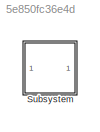
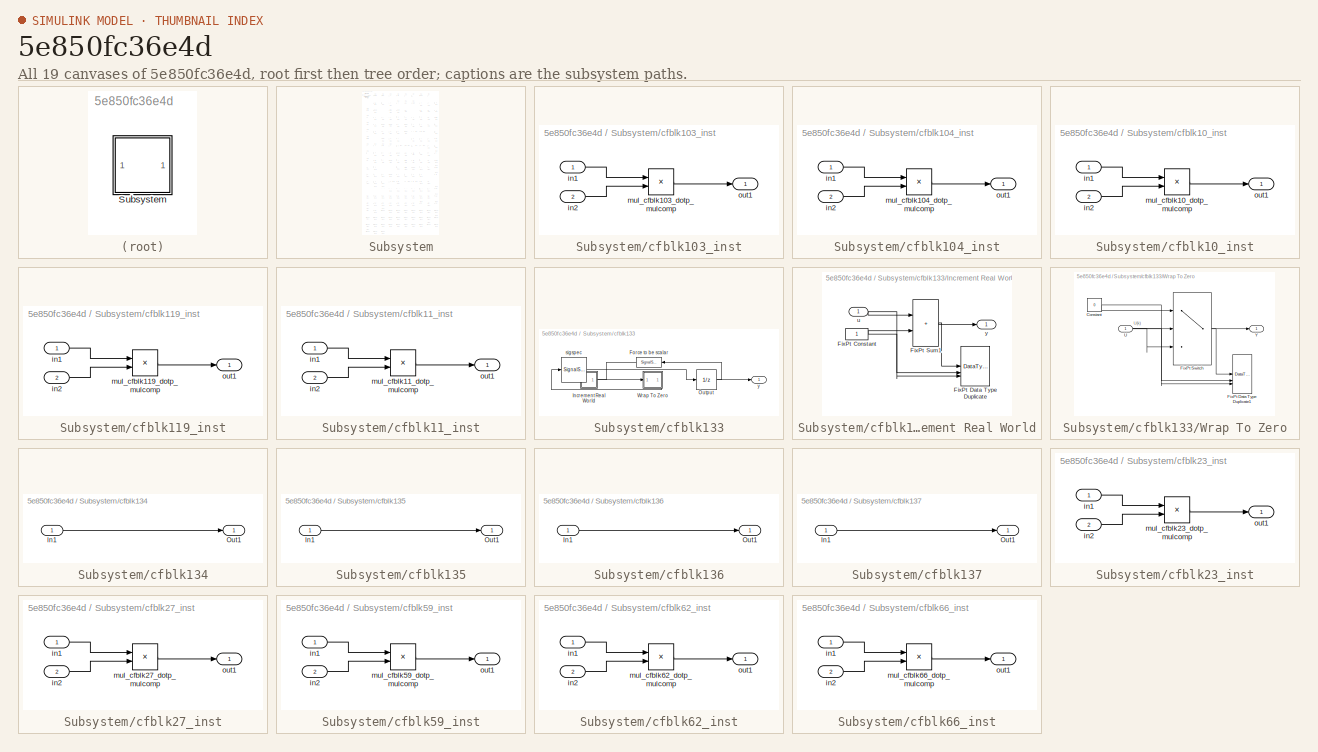
[diagram: thumbnail index - all 19 canvases of the model, root first then tree order]
MODEL slx_5e850fc36e4d
KIND model
CONFIG AbsTol = auto
CONFIG EnableMultiTasking = off
CONFIG FixedStep = auto
CONFIG MaxStep = auto
CONFIG MinStep = auto
CONFIG RelTol = 1e-3
CONFIG SampleTimeConstraint = Unconstrained
CONFIG SolverName = VariableStepAuto
CONFIG StartTime = 0.0
CONFIG StopTime = 10.0
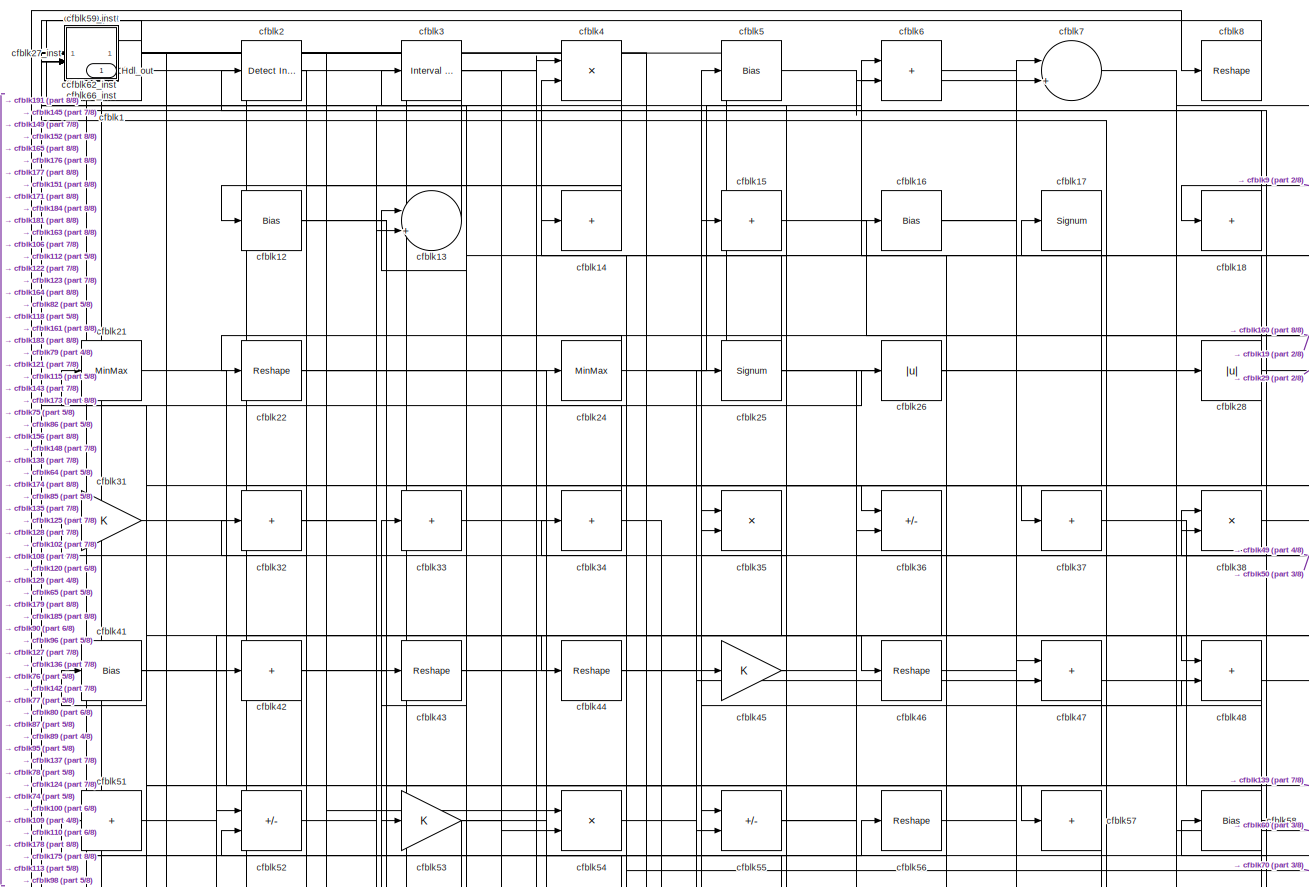
[diagram: Subsystem - part 1/8, full width, top band]
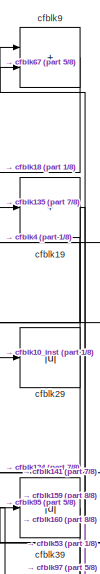
[diagram: Subsystem - part 2/8, top right region]
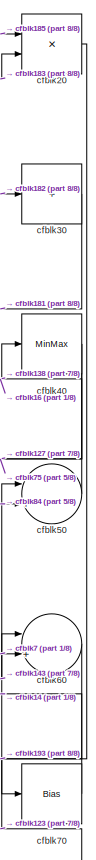
[diagram: Subsystem - part 3/8, top right region]
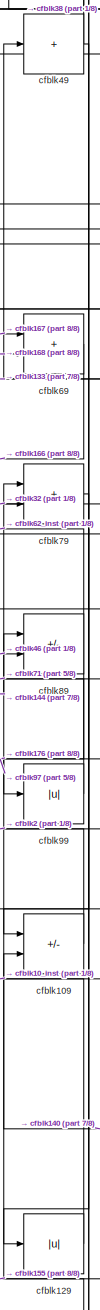
[diagram: Subsystem - part 4/8, middle right region]
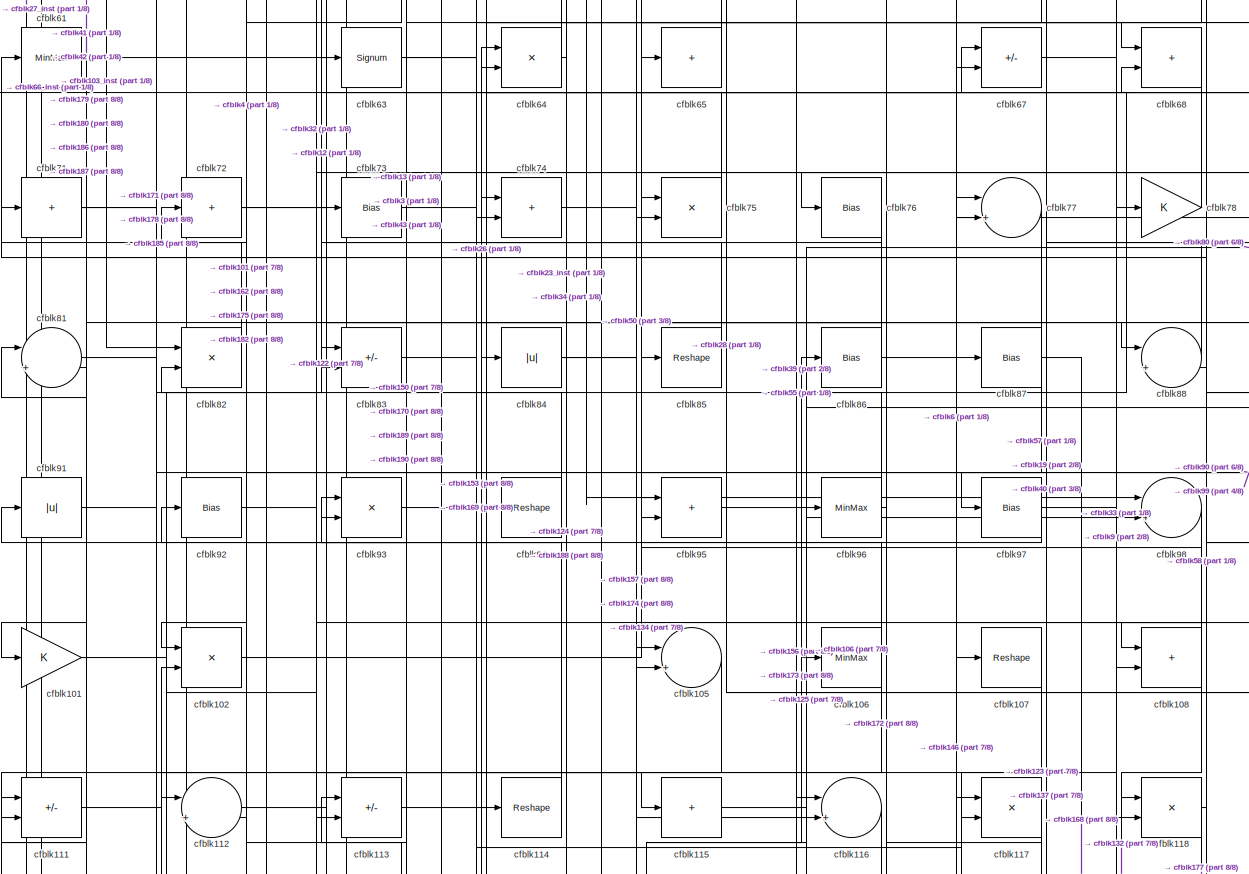
[diagram: Subsystem - part 5/8, full width, middle band]
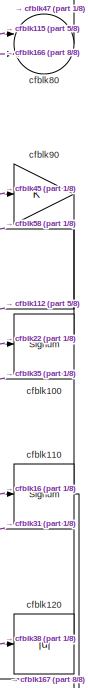
[diagram: Subsystem - part 6/8, middle right region]
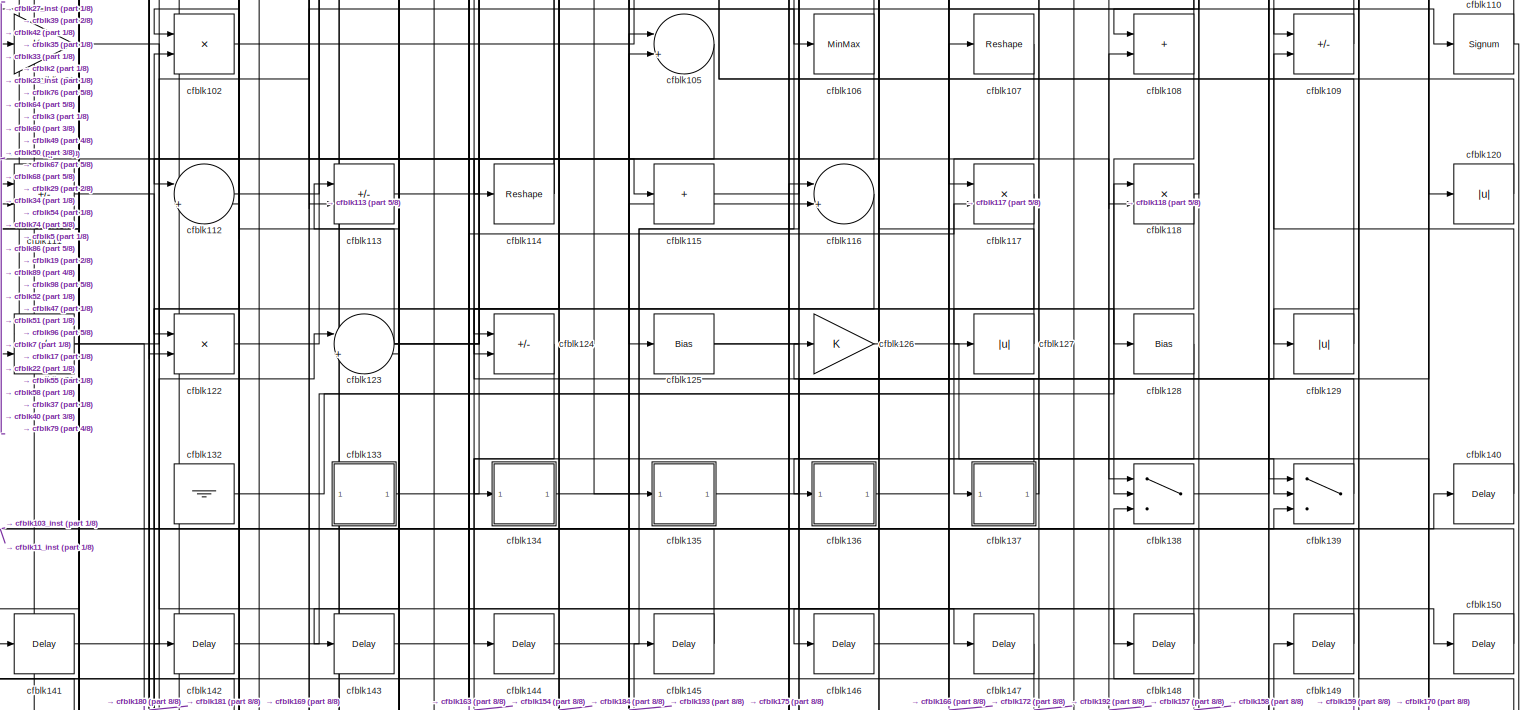
[diagram: Subsystem - part 7/8, full width, middle band]
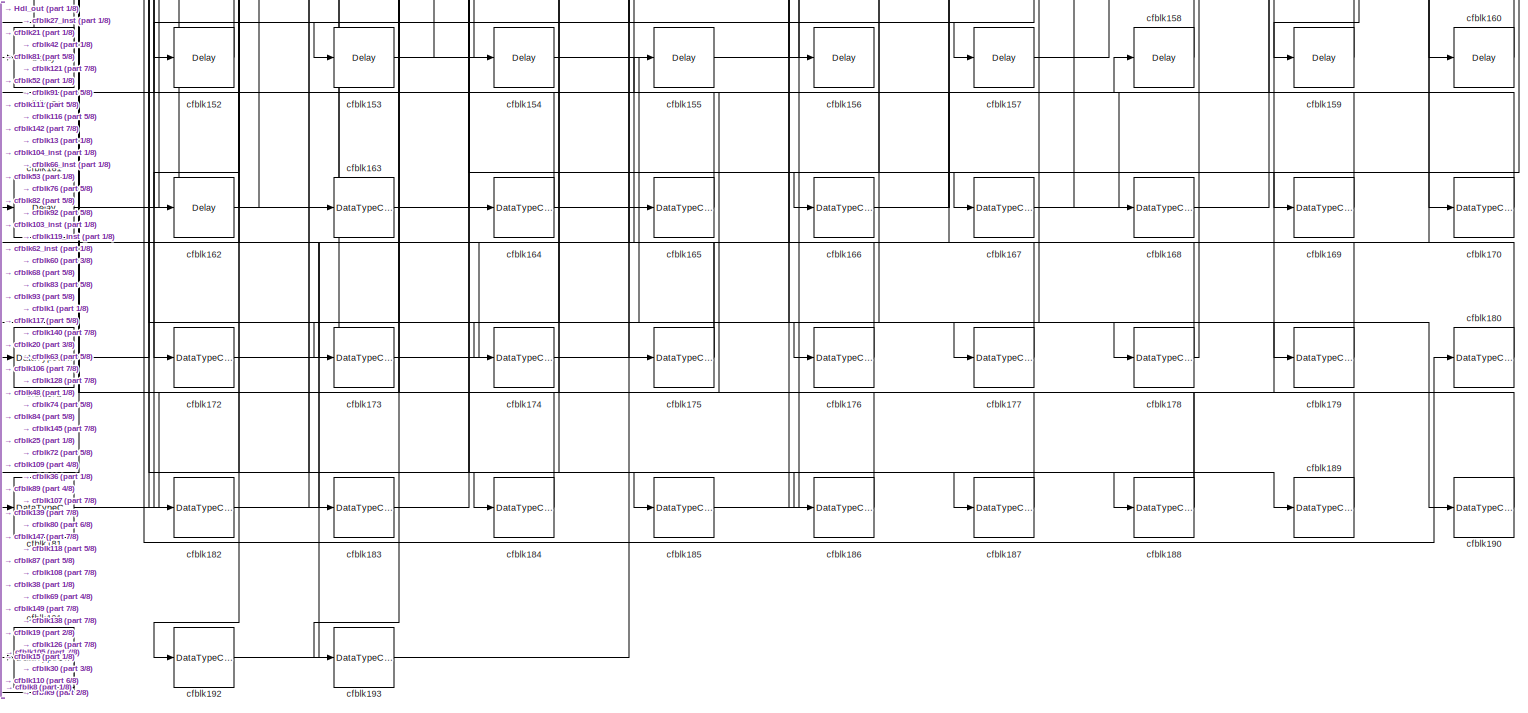
[diagram: Subsystem - part 8/8, full width, bottom band]
BLOCK [SubSystem] Subsystem
BLOCK [Outport] Subsystem/Hdl_out
  OutDataTypeStr = uint8
  SampleTime = 1
BLOCK [Reference] Subsystem/cfblk1  REF=simulink/Logic and Bit
Operations/Detect
Change
  LibrarySourceBlock = hdlsllib/Logic and Bit\nOperations/Detect\nChange
  SourceBlock = simulink/Logic and Bit\nOperations/Detect\nChange
  SourceType = Detect Change
BLOCK [Signum] Subsystem/cfblk100
BLOCK [Gain] Subsystem/cfblk101
  OutDataTypeStr = uint8
BLOCK [Product] Subsystem/cfblk102
  Inputs = */
  OutDataTypeStr = uint8
  RndMeth = Zero
  SaturateOnIntegerOverflow = on
BLOCK [SubSystem] Subsystem/cfblk103_inst
BLOCK [Inport] Subsystem/cfblk103_inst/in1
  OutDataTypeStr = uint8
  SampleTime = 1
BLOCK [Inport] Subsystem/cfblk103_inst/in2
  OutDataTypeStr = uint8
  Port = 2
  SampleTime = 1
BLOCK [Product] Subsystem/cfblk103_inst/mul_cfblk103_dotp_mulcomp
  Inputs = **
  OutDataTypeStr = uint8
  SampleTime = 1
BLOCK [Outport] Subsystem/cfblk103_inst/out1
  OutDataTypeStr = uint8
  SampleTime = 1
BLOCK [SubSystem] Subsystem/cfblk104_inst
BLOCK [Inport] Subsystem/cfblk104_inst/in1
  OutDataTypeStr = uint8
  SampleTime = 1
BLOCK [Inport] Subsystem/cfblk104_inst/in2
  OutDataTypeStr = uint8
  Port = 2
  SampleTime = 1
BLOCK [Product] Subsystem/cfblk104_inst/mul_cfblk104_dotp_mulcomp
  Inputs = **
  OutDataTypeStr = uint8
  SampleTime = 1
BLOCK [Outport] Subsystem/cfblk104_inst/out1
  OutDataTypeStr = uint8
  SampleTime = 1
BLOCK [Sum] Subsystem/cfblk105
  Inputs = |++
  OutDataTypeStr = uint8
BLOCK [MinMax] Subsystem/cfblk106
  OutDataTypeStr = uint8
BLOCK [Reshape] Subsystem/cfblk107
BLOCK [Sum] Subsystem/cfblk108
  IconShape = rectangular
  OutDataTypeStr = uint8
BLOCK [Sum] Subsystem/cfblk109
  IconShape = rectangular
  Inputs = +-
  OutDataTypeStr = uint8
BLOCK [SubSystem] Subsystem/cfblk10_inst
BLOCK [Inport] Subsystem/cfblk10_inst/in1
  OutDataTypeStr = uint8
  SampleTime = 1
BLOCK [Inport] Subsystem/cfblk10_inst/in2
  OutDataTypeStr = uint8
  Port = 2
  SampleTime = 1
BLOCK [Product] Subsystem/cfblk10_inst/mul_cfblk10_dotp_mulcomp
  Inputs = **
  OutDataTypeStr = uint8
  SampleTime = 1
BLOCK [Outport] Subsystem/cfblk10_inst/out1
  OutDataTypeStr = uint8
  SampleTime = 1
BLOCK [Signum] Subsystem/cfblk110
BLOCK [Sum] Subsystem/cfblk111
  IconShape = rectangular
  Inputs = +-
  OutDataTypeStr = uint8
BLOCK [Sum] Subsystem/cfblk112
  Inputs = |++
  OutDataTypeStr = uint8
BLOCK [Sum] Subsystem/cfblk113
  IconShape = rectangular
  Inputs = +-
  OutDataTypeStr = uint8
BLOCK [Reshape] Subsystem/cfblk114
BLOCK [Sum] Subsystem/cfblk115
  IconShape = rectangular
  Inputs = +
  OutDataTypeStr = uint8
BLOCK [Sum] Subsystem/cfblk116
  Inputs = |++
  OutDataTypeStr = uint8
BLOCK [Product] Subsystem/cfblk117
  Inputs = */
  OutDataTypeStr = uint8
  RndMeth = Zero
  SaturateOnIntegerOverflow = on
BLOCK [Product] Subsystem/cfblk118
  Inputs = */
  OutDataTypeStr = uint8
  RndMeth = Zero
  SaturateOnIntegerOverflow = on
BLOCK [SubSystem] Subsystem/cfblk119_inst
BLOCK [Inport] Subsystem/cfblk119_inst/in1
  OutDataTypeStr = uint8
  SampleTime = 1
BLOCK [Inport] Subsystem/cfblk119_inst/in2
  OutDataTypeStr = uint8
  Port = 2
  SampleTime = 1
BLOCK [Product] Subsystem/cfblk119_inst/mul_cfblk119_dotp_mulcomp
  Inputs = **
  OutDataTypeStr = uint8
  SampleTime = 1
BLOCK [Outport] Subsystem/cfblk119_inst/out1
  OutDataTypeStr = uint8
  SampleTime = 1
BLOCK [SubSystem] Subsystem/cfblk11_inst
BLOCK [Inport] Subsystem/cfblk11_inst/in1
  OutDataTypeStr = uint8
  SampleTime = 1
BLOCK [Inport] Subsystem/cfblk11_inst/in2
  OutDataTypeStr = uint8
  Port = 2
  SampleTime = 1
BLOCK [Product] Subsystem/cfblk11_inst/mul_cfblk11_dotp_mulcomp
  Inputs = **
  OutDataTypeStr = uint8
  SampleTime = 1
BLOCK [Outport] Subsystem/cfblk11_inst/out1
  OutDataTypeStr = uint8
  SampleTime = 1
BLOCK [Bias] Subsystem/cfblk12
  Bias = 0.0
  SaturateOnIntegerOverflow = off
BLOCK [Abs] Subsystem/cfblk120
  OutDataTypeStr = uint8
  SaturateOnIntegerOverflow = off
BLOCK [Sum] Subsystem/cfblk121
  IconShape = rectangular
  Inputs = +-
  OutDataTypeStr = uint8
BLOCK [Product] Subsystem/cfblk122
  Inputs = */
  OutDataTypeStr = uint8
  RndMeth = Zero
  SaturateOnIntegerOverflow = on
BLOCK [Sum] Subsystem/cfblk123
  Inputs = |++
  OutDataTypeStr = uint8
BLOCK [Sum] Subsystem/cfblk124
  IconShape = rectangular
  Inputs = +-
  OutDataTypeStr = uint8
BLOCK [Bias] Subsystem/cfblk125
  Bias = 0.0
  SaturateOnIntegerOverflow = off
BLOCK [Gain] Subsystem/cfblk126
  OutDataTypeStr = uint8
BLOCK [Abs] Subsystem/cfblk127
  OutDataTypeStr = uint8
  SaturateOnIntegerOverflow = off
BLOCK [Bias] Subsystem/cfblk128
  Bias = 0.0
  SaturateOnIntegerOverflow = off
BLOCK [Abs] Subsystem/cfblk129
  OutDataTypeStr = uint8
  SaturateOnIntegerOverflow = off
BLOCK [Sum] Subsystem/cfblk13
  Inputs = |++
  OutDataTypeStr = uint8
BLOCK [Ground] Subsystem/cfblk132
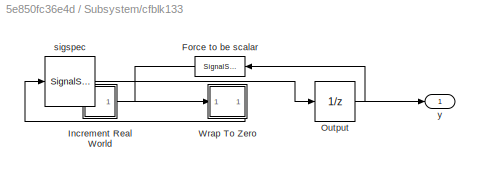
BLOCK [SubSystem] Subsystem/cfblk133
BLOCK [SignalSpecification] Subsystem/cfblk133/Force to be scalar
  Dimensions = 1
  DisableCoverage = on
BLOCK [SubSystem] Subsystem/cfblk133/Increment Real World
BLOCK [Constant] Subsystem/cfblk133/Increment Real World/FixPt Constant
  DisableCoverage = on
  OutDataTypeStr = Inherit: Inherit via back propagation
  SampleTime = -1
BLOCK [DataTypeDuplicate] Subsystem/cfblk133/Increment Real World/FixPt Data Type Duplicate
  DisableCoverage = on
  NumInputPorts = 3
BLOCK [Sum] Subsystem/cfblk133/Increment Real World/FixPt Sum1
  IconShape = rectangular
  InputSameDT = on
  LockScale = on
  OutDataTypeStr = Inherit: Inherit via back propagation
BLOCK [Inport] Subsystem/cfblk133/Increment Real World/u
  OutDataTypeStr = uint8
  SampleTime = 1
BLOCK [Outport] Subsystem/cfblk133/Increment Real World/y
  SampleTime = 1
BLOCK [UnitDelay] Subsystem/cfblk133/Output
  HasFrameUpgradeWarning = on
  InitialCondition = 0.0
  SampleTime = tsamp
BLOCK [SubSystem] Subsystem/cfblk133/Wrap To Zero
BLOCK [Constant] Subsystem/cfblk133/Wrap To Zero/Constant
  DisableCoverage = on
  OutDataTypeStr = Inherit: Inherit via back propagation
  SampleTime = -1
  Value = 0
BLOCK [DataTypeDuplicate] Subsystem/cfblk133/Wrap To Zero/FixPt Data Type Duplicate1
  DisableCoverage = on
  NumInputPorts = 3
BLOCK [Switch] Subsystem/cfblk133/Wrap To Zero/FixPt Switch
  Criteria = u2 > Threshold
  InputSameDT = off
  OutDataTypeStr = Inherit: Inherit via back propagation
  SaturateOnIntegerOverflow = off
  Threshold = Threshold
  ZeroCross = off
BLOCK [Inport] Subsystem/cfblk133/Wrap To Zero/U
  OutDataTypeStr = uint8
  SampleTime = 1
BLOCK [Outport] Subsystem/cfblk133/Wrap To Zero/Y
  SampleTime = 1
BLOCK [SignalSpecification] Subsystem/cfblk133/sigspec
  Dimensions = 1
  OutDataTypeStr = uint8
BLOCK [Outport] Subsystem/cfblk133/y
  SampleTime = 1
BLOCK [SubSystem] Subsystem/cfblk134
BLOCK [Inport] Subsystem/cfblk134/In1
  OutDataTypeStr = uint8
  PortDimensions = 1
  SampleTime = 1
BLOCK [Outport] Subsystem/cfblk134/Out1
  SampleTime = 1
BLOCK [SubSystem] Subsystem/cfblk135
BLOCK [Inport] Subsystem/cfblk135/In1
  OutDataTypeStr = uint8
  PortDimensions = 1
  SampleTime = 1
BLOCK [Outport] Subsystem/cfblk135/Out1
  SampleTime = 1
BLOCK [SubSystem] Subsystem/cfblk136
BLOCK [Inport] Subsystem/cfblk136/In1
  OutDataTypeStr = uint8
  PortDimensions = 1
  SampleTime = 1
BLOCK [Outport] Subsystem/cfblk136/Out1
  SampleTime = 1
BLOCK [SubSystem] Subsystem/cfblk137
BLOCK [Inport] Subsystem/cfblk137/In1
  OutDataTypeStr = uint8
  PortDimensions = 1
  SampleTime = 1
BLOCK [Outport] Subsystem/cfblk137/Out1
  SampleTime = 1
BLOCK [Switch] Subsystem/cfblk138
  InputSameDT = off
  OutDataTypeStr = uint8
  SaturateOnIntegerOverflow = off
BLOCK [Switch] Subsystem/cfblk139
  InputSameDT = off
  OutDataTypeStr = uint8
  SaturateOnIntegerOverflow = off
BLOCK [Sum] Subsystem/cfblk14
  IconShape = rectangular
  Inputs = +
  OutDataTypeStr = uint8
BLOCK [Delay] Subsystem/cfblk140
  InputPortMap = u0
  SampleTime = 1
BLOCK [Delay] Subsystem/cfblk141
  InputPortMap = u0
  SampleTime = 1
BLOCK [Delay] Subsystem/cfblk142
  InputPortMap = u0
  SampleTime = 1
BLOCK [Delay] Subsystem/cfblk143
  InputPortMap = u0
  SampleTime = 1
BLOCK [Delay] Subsystem/cfblk144
  InputPortMap = u0
  SampleTime = 1
BLOCK [Delay] Subsystem/cfblk145
  InputPortMap = u0
  SampleTime = 1
BLOCK [Delay] Subsystem/cfblk146
  InputPortMap = u0
  SampleTime = 1
BLOCK [Delay] Subsystem/cfblk147
  InputPortMap = u0
  SampleTime = 1
BLOCK [Delay] Subsystem/cfblk148
  InputPortMap = u0
  SampleTime = 1
BLOCK [Delay] Subsystem/cfblk149
  InputPortMap = u0
  SampleTime = 1
BLOCK [Sum] Subsystem/cfblk15
  IconShape = rectangular
  Inputs = +
  OutDataTypeStr = uint8
BLOCK [Delay] Subsystem/cfblk150
  InputPortMap = u0
  SampleTime = 1
BLOCK [Delay] Subsystem/cfblk151
  InputPortMap = u0
  SampleTime = 1
BLOCK [Delay] Subsystem/cfblk152
  InputPortMap = u0
  SampleTime = 1
BLOCK [Delay] Subsystem/cfblk153
  InputPortMap = u0
  SampleTime = 1
BLOCK [Delay] Subsystem/cfblk154
  InputPortMap = u0
  SampleTime = 1
BLOCK [Delay] Subsystem/cfblk155
  InputPortMap = u0
  SampleTime = 1
BLOCK [Delay] Subsystem/cfblk156
  InputPortMap = u0
  SampleTime = 1
BLOCK [Delay] Subsystem/cfblk157
  InputPortMap = u0
  SampleTime = 1
BLOCK [Delay] Subsystem/cfblk158
  InputPortMap = u0
  SampleTime = 1
BLOCK [Delay] Subsystem/cfblk159
  InputPortMap = u0
  SampleTime = 1
BLOCK [Bias] Subsystem/cfblk16
  Bias = 0.0
  SaturateOnIntegerOverflow = off
BLOCK [Delay] Subsystem/cfblk160
  InputPortMap = u0
  SampleTime = 1
BLOCK [Delay] Subsystem/cfblk161
  InputPortMap = u0
  SampleTime = 1
BLOCK [Delay] Subsystem/cfblk162
  InputPortMap = u0
  SampleTime = 1
BLOCK [DataTypeConversion] Subsystem/cfblk163
  OutDataTypeStr = uint8
  RndMeth = Floor
  SaturateOnIntegerOverflow = off
BLOCK [DataTypeConversion] Subsystem/cfblk164
  OutDataTypeStr = uint8
  RndMeth = Floor
  SaturateOnIntegerOverflow = off
BLOCK [DataTypeConversion] Subsystem/cfblk165
  OutDataTypeStr = uint8
  RndMeth = Floor
  SaturateOnIntegerOverflow = off
BLOCK [DataTypeConversion] Subsystem/cfblk166
  OutDataTypeStr = uint8
  RndMeth = Floor
  SaturateOnIntegerOverflow = off
BLOCK [DataTypeConversion] Subsystem/cfblk167
  OutDataTypeStr = uint8
  RndMeth = Floor
  SaturateOnIntegerOverflow = off
BLOCK [DataTypeConversion] Subsystem/cfblk168
  OutDataTypeStr = uint8
  RndMeth = Floor
  SaturateOnIntegerOverflow = off
BLOCK [DataTypeConversion] Subsystem/cfblk169
  OutDataTypeStr = uint8
  RndMeth = Floor
  SaturateOnIntegerOverflow = off
BLOCK [Signum] Subsystem/cfblk17
BLOCK [DataTypeConversion] Subsystem/cfblk170
  OutDataTypeStr = uint8
  RndMeth = Floor
  SaturateOnIntegerOverflow = off
BLOCK [DataTypeConversion] Subsystem/cfblk171
  OutDataTypeStr = uint8
  RndMeth = Floor
  SaturateOnIntegerOverflow = off
BLOCK [DataTypeConversion] Subsystem/cfblk172
  OutDataTypeStr = uint8
  RndMeth = Floor
  SaturateOnIntegerOverflow = off
BLOCK [DataTypeConversion] Subsystem/cfblk173
  OutDataTypeStr = uint8
  RndMeth = Floor
  SaturateOnIntegerOverflow = off
BLOCK [DataTypeConversion] Subsystem/cfblk174
  OutDataTypeStr = uint8
  RndMeth = Floor
  SaturateOnIntegerOverflow = off
BLOCK [DataTypeConversion] Subsystem/cfblk175
  OutDataTypeStr = uint8
  RndMeth = Floor
  SaturateOnIntegerOverflow = off
BLOCK [DataTypeConversion] Subsystem/cfblk176
  OutDataTypeStr = uint8
  RndMeth = Floor
  SaturateOnIntegerOverflow = off
BLOCK [DataTypeConversion] Subsystem/cfblk177
  OutDataTypeStr = uint8
  RndMeth = Floor
  SaturateOnIntegerOverflow = off
BLOCK [DataTypeConversion] Subsystem/cfblk178
  OutDataTypeStr = uint8
  RndMeth = Floor
  SaturateOnIntegerOverflow = off
BLOCK [DataTypeConversion] Subsystem/cfblk179
  OutDataTypeStr = uint8
  RndMeth = Floor
  SaturateOnIntegerOverflow = off
BLOCK [Sum] Subsystem/cfblk18
  IconShape = rectangular
  Inputs = +
  OutDataTypeStr = uint8
BLOCK [DataTypeConversion] Subsystem/cfblk180
  OutDataTypeStr = uint8
  RndMeth = Floor
  SaturateOnIntegerOverflow = off
BLOCK [DataTypeConversion] Subsystem/cfblk181
  OutDataTypeStr = uint8
  RndMeth = Floor
  SaturateOnIntegerOverflow = off
BLOCK [DataTypeConversion] Subsystem/cfblk182
  OutDataTypeStr = uint8
  RndMeth = Floor
  SaturateOnIntegerOverflow = off
BLOCK [DataTypeConversion] Subsystem/cfblk183
  OutDataTypeStr = uint8
  RndMeth = Floor
  SaturateOnIntegerOverflow = off
BLOCK [DataTypeConversion] Subsystem/cfblk184
  OutDataTypeStr = uint8
  RndMeth = Floor
  SaturateOnIntegerOverflow = off
BLOCK [DataTypeConversion] Subsystem/cfblk185
  OutDataTypeStr = uint8
  RndMeth = Floor
  SaturateOnIntegerOverflow = off
BLOCK [DataTypeConversion] Subsystem/cfblk186
  OutDataTypeStr = uint8
  RndMeth = Floor
  SaturateOnIntegerOverflow = off
BLOCK [DataTypeConversion] Subsystem/cfblk187
  OutDataTypeStr = uint8
  RndMeth = Floor
  SaturateOnIntegerOverflow = off
BLOCK [DataTypeConversion] Subsystem/cfblk188
  OutDataTypeStr = uint8
  RndMeth = Floor
  SaturateOnIntegerOverflow = off
BLOCK [DataTypeConversion] Subsystem/cfblk189
  OutDataTypeStr = uint8
  RndMeth = Floor
  SaturateOnIntegerOverflow = off
BLOCK [Sum] Subsystem/cfblk19
  IconShape = rectangular
  Inputs = +
  OutDataTypeStr = uint8
BLOCK [DataTypeConversion] Subsystem/cfblk190
  OutDataTypeStr = uint8
  RndMeth = Floor
  SaturateOnIntegerOverflow = off
BLOCK [DataTypeConversion] Subsystem/cfblk191
  OutDataTypeStr = uint8
  RndMeth = Floor
  SaturateOnIntegerOverflow = off
BLOCK [DataTypeConversion] Subsystem/cfblk192
  OutDataTypeStr = uint8
  RndMeth = Floor
  SaturateOnIntegerOverflow = off
BLOCK [DataTypeConversion] Subsystem/cfblk193
  OutDataTypeStr = uint8
  RndMeth = Floor
  SaturateOnIntegerOverflow = off
BLOCK [Reference] Subsystem/cfblk2  REF=simulink/Logic and Bit
Operations/Detect
Increase
  LibrarySourceBlock = hdlsllib/Logic and Bit\nOperations/Detect\nIncrease
  SourceBlock = simulink/Logic and Bit\nOperations/Detect\nIncrease
  SourceType = Detect Increase
BLOCK [Product] Subsystem/cfblk20
  Inputs = */
  OutDataTypeStr = uint8
  RndMeth = Zero
  SaturateOnIntegerOverflow = on
BLOCK [MinMax] Subsystem/cfblk21
  OutDataTypeStr = uint8
BLOCK [Reshape] Subsystem/cfblk22
BLOCK [SubSystem] Subsystem/cfblk23_inst
BLOCK [Inport] Subsystem/cfblk23_inst/in1
  OutDataTypeStr = uint8
  SampleTime = 1
BLOCK [Inport] Subsystem/cfblk23_inst/in2
  OutDataTypeStr = uint8
  Port = 2
  SampleTime = 1
BLOCK [Product] Subsystem/cfblk23_inst/mul_cfblk23_dotp_mulcomp
  Inputs = **
  OutDataTypeStr = uint8
  SampleTime = 1
BLOCK [Outport] Subsystem/cfblk23_inst/out1
  OutDataTypeStr = uint8
  SampleTime = 1
BLOCK [MinMax] Subsystem/cfblk24
  OutDataTypeStr = uint8
BLOCK [Signum] Subsystem/cfblk25
BLOCK [Abs] Subsystem/cfblk26
  OutDataTypeStr = uint8
  SaturateOnIntegerOverflow = off
BLOCK [SubSystem] Subsystem/cfblk27_inst
BLOCK [Inport] Subsystem/cfblk27_inst/in1
  OutDataTypeStr = uint8
  SampleTime = 1
BLOCK [Inport] Subsystem/cfblk27_inst/in2
  OutDataTypeStr = uint8
  Port = 2
  SampleTime = 1
BLOCK [Product] Subsystem/cfblk27_inst/mul_cfblk27_dotp_mulcomp
  Inputs = **
  OutDataTypeStr = uint8
  SampleTime = 1
BLOCK [Outport] Subsystem/cfblk27_inst/out1
  OutDataTypeStr = uint8
  SampleTime = 1
BLOCK [Abs] Subsystem/cfblk28
  OutDataTypeStr = uint8
  SaturateOnIntegerOverflow = off
BLOCK [Abs] Subsystem/cfblk29
  OutDataTypeStr = uint8
  SaturateOnIntegerOverflow = off
BLOCK [Reference] Subsystem/cfblk3  REF=hdlsllib/Logic and Bit
Operations/Interval Test
  SourceBlock = hdlsllib/Logic and Bit\nOperations/Interval Test
  SourceType = Interval Test
BLOCK [Sum] Subsystem/cfblk30
  IconShape = rectangular
  Inputs = +
  OutDataTypeStr = uint8
BLOCK [Gain] Subsystem/cfblk31
  OutDataTypeStr = uint8
BLOCK [Sum] Subsystem/cfblk32
  IconShape = rectangular
  Inputs = +
  OutDataTypeStr = uint8
BLOCK [Sum] Subsystem/cfblk33
  IconShape = rectangular
  Inputs = +
  OutDataTypeStr = uint8
BLOCK [Sum] Subsystem/cfblk34
  IconShape = rectangular
  Inputs = +
  OutDataTypeStr = uint8
BLOCK [Product] Subsystem/cfblk35
  Inputs = */
  OutDataTypeStr = uint8
  RndMeth = Zero
  SaturateOnIntegerOverflow = on
BLOCK [Sum] Subsystem/cfblk36
  IconShape = rectangular
  Inputs = +-
  OutDataTypeStr = uint8
BLOCK [Sum] Subsystem/cfblk37
  IconShape = rectangular
  Inputs = +
  OutDataTypeStr = uint8
BLOCK [Product] Subsystem/cfblk38
  Inputs = */
  OutDataTypeStr = uint8
  RndMeth = Zero
  SaturateOnIntegerOverflow = on
BLOCK [Abs] Subsystem/cfblk39
  OutDataTypeStr = uint8
  SaturateOnIntegerOverflow = off
BLOCK [Product] Subsystem/cfblk4
  Inputs = */
  OutDataTypeStr = uint8
  RndMeth = Zero
  SaturateOnIntegerOverflow = on
BLOCK [MinMax] Subsystem/cfblk40
  OutDataTypeStr = uint8
BLOCK [Bias] Subsystem/cfblk41
  Bias = 0.0
  SaturateOnIntegerOverflow = off
BLOCK [Sum] Subsystem/cfblk42
  IconShape = rectangular
  Inputs = +
  OutDataTypeStr = uint8
BLOCK [Reshape] Subsystem/cfblk43
BLOCK [Reshape] Subsystem/cfblk44
BLOCK [Gain] Subsystem/cfblk45
  OutDataTypeStr = uint8
BLOCK [Reshape] Subsystem/cfblk46
BLOCK [Sum] Subsystem/cfblk47
  IconShape = rectangular
  OutDataTypeStr = uint8
BLOCK [Sum] Subsystem/cfblk48
  IconShape = rectangular
  OutDataTypeStr = uint8
BLOCK [Sum] Subsystem/cfblk49
  IconShape = rectangular
  Inputs = +
  OutDataTypeStr = uint8
BLOCK [Bias] Subsystem/cfblk5
  Bias = 0.0
  SaturateOnIntegerOverflow = off
BLOCK [Sum] Subsystem/cfblk50
  Inputs = |++
  OutDataTypeStr = uint8
BLOCK [Sum] Subsystem/cfblk51
  IconShape = rectangular
  Inputs = +
  OutDataTypeStr = uint8
BLOCK [Sum] Subsystem/cfblk52
  IconShape = rectangular
  Inputs = +-
  OutDataTypeStr = uint8
BLOCK [Gain] Subsystem/cfblk53
  OutDataTypeStr = uint8
BLOCK [Product] Subsystem/cfblk54
  Inputs = */
  OutDataTypeStr = uint8
  RndMeth = Zero
  SaturateOnIntegerOverflow = on
BLOCK [Sum] Subsystem/cfblk55
  IconShape = rectangular
  Inputs = +-
  OutDataTypeStr = uint8
BLOCK [Reshape] Subsystem/cfblk56
BLOCK [Sum] Subsystem/cfblk57
  IconShape = rectangular
  Inputs = +
  OutDataTypeStr = uint8
BLOCK [Bias] Subsystem/cfblk58
  Bias = 0.0
  SaturateOnIntegerOverflow = off
BLOCK [SubSystem] Subsystem/cfblk59_inst
BLOCK [Inport] Subsystem/cfblk59_inst/in1
  OutDataTypeStr = uint8
  SampleTime = 1
BLOCK [Inport] Subsystem/cfblk59_inst/in2
  OutDataTypeStr = uint8
  Port = 2
  SampleTime = 1
BLOCK [Product] Subsystem/cfblk59_inst/mul_cfblk59_dotp_mulcomp
  Inputs = **
  OutDataTypeStr = uint8
  SampleTime = 1
BLOCK [Outport] Subsystem/cfblk59_inst/out1
  OutDataTypeStr = uint8
  SampleTime = 1
BLOCK [Sum] Subsystem/cfblk6
  IconShape = rectangular
  OutDataTypeStr = uint8
BLOCK [Sum] Subsystem/cfblk60
  Inputs = |++
  OutDataTypeStr = uint8
BLOCK [MinMax] Subsystem/cfblk61
  OutDataTypeStr = uint8
BLOCK [SubSystem] Subsystem/cfblk62_inst
BLOCK [Inport] Subsystem/cfblk62_inst/in1
  OutDataTypeStr = uint8
  SampleTime = 1
BLOCK [Inport] Subsystem/cfblk62_inst/in2
  OutDataTypeStr = uint8
  Port = 2
  SampleTime = 1
BLOCK [Product] Subsystem/cfblk62_inst/mul_cfblk62_dotp_mulcomp
  Inputs = **
  OutDataTypeStr = uint8
  SampleTime = 1
BLOCK [Outport] Subsystem/cfblk62_inst/out1
  OutDataTypeStr = uint8
  SampleTime = 1
BLOCK [Signum] Subsystem/cfblk63
BLOCK [Product] Subsystem/cfblk64
  Inputs = */
  OutDataTypeStr = uint8
  RndMeth = Zero
  SaturateOnIntegerOverflow = on
BLOCK [Sum] Subsystem/cfblk65
  IconShape = rectangular
  Inputs = +
  OutDataTypeStr = uint8
BLOCK [SubSystem] Subsystem/cfblk66_inst
BLOCK [Inport] Subsystem/cfblk66_inst/in1
  OutDataTypeStr = uint8
  SampleTime = 1
BLOCK [Inport] Subsystem/cfblk66_inst/in2
  OutDataTypeStr = uint8
  Port = 2
  SampleTime = 1
BLOCK [Product] Subsystem/cfblk66_inst/mul_cfblk66_dotp_mulcomp
  Inputs = **
  OutDataTypeStr = uint8
  SampleTime = 1
BLOCK [Outport] Subsystem/cfblk66_inst/out1
  OutDataTypeStr = uint8
  SampleTime = 1
BLOCK [Sum] Subsystem/cfblk67
  IconShape = rectangular
  Inputs = +-
  OutDataTypeStr = uint8
BLOCK [Sum] Subsystem/cfblk68
  IconShape = rectangular
  OutDataTypeStr = uint8
BLOCK [Sum] Subsystem/cfblk69
  IconShape = rectangular
  OutDataTypeStr = uint8
BLOCK [Sum] Subsystem/cfblk7
  Inputs = |++
  OutDataTypeStr = uint8
BLOCK [Bias] Subsystem/cfblk70
  Bias = 0.0
  SaturateOnIntegerOverflow = off
BLOCK [Sum] Subsystem/cfblk71
  IconShape = rectangular
  Inputs = +
  OutDataTypeStr = uint8
BLOCK [Sum] Subsystem/cfblk72
  IconShape = rectangular
  Inputs = +
  OutDataTypeStr = uint8
BLOCK [Bias] Subsystem/cfblk73
  Bias = 0.0
  SaturateOnIntegerOverflow = off
BLOCK [Sum] Subsystem/cfblk74
  IconShape = rectangular
  OutDataTypeStr = uint8
BLOCK [Product] Subsystem/cfblk75
  Inputs = */
  OutDataTypeStr = uint8
  RndMeth = Zero
  SaturateOnIntegerOverflow = on
BLOCK [Bias] Subsystem/cfblk76
  Bias = 0.0
  SaturateOnIntegerOverflow = off
BLOCK [Sum] Subsystem/cfblk77
  Inputs = |++
  OutDataTypeStr = uint8
BLOCK [Gain] Subsystem/cfblk78
  OutDataTypeStr = uint8
BLOCK [Sum] Subsystem/cfblk79
  IconShape = rectangular
  OutDataTypeStr = uint8
BLOCK [Reshape] Subsystem/cfblk8
BLOCK [Sum] Subsystem/cfblk80
  Inputs = |++
  OutDataTypeStr = uint8
BLOCK [Sum] Subsystem/cfblk81
  Inputs = |++
  OutDataTypeStr = uint8
BLOCK [Product] Subsystem/cfblk82
  Inputs = */
  OutDataTypeStr = uint8
  RndMeth = Zero
  SaturateOnIntegerOverflow = on
BLOCK [Sum] Subsystem/cfblk83
  IconShape = rectangular
  Inputs = +-
  OutDataTypeStr = uint8
BLOCK [Abs] Subsystem/cfblk84
  OutDataTypeStr = uint8
  SaturateOnIntegerOverflow = off
BLOCK [Reshape] Subsystem/cfblk85
BLOCK [Bias] Subsystem/cfblk86
  Bias = 0.0
  SaturateOnIntegerOverflow = off
BLOCK [Bias] Subsystem/cfblk87
  Bias = 0.0
  SaturateOnIntegerOverflow = off
BLOCK [Sum] Subsystem/cfblk88
  Inputs = |++
  OutDataTypeStr = uint8
BLOCK [Sum] Subsystem/cfblk89
  IconShape = rectangular
  Inputs = +-
  OutDataTypeStr = uint8
BLOCK [Sum] Subsystem/cfblk9
  IconShape = rectangular
  OutDataTypeStr = uint8
BLOCK [Gain] Subsystem/cfblk90
  OutDataTypeStr = uint8
BLOCK [Abs] Subsystem/cfblk91
  OutDataTypeStr = uint8
  SaturateOnIntegerOverflow = off
BLOCK [Bias] Subsystem/cfblk92
  Bias = 0.0
  SaturateOnIntegerOverflow = off
BLOCK [Product] Subsystem/cfblk93
  Inputs = */
  OutDataTypeStr = uint8
  RndMeth = Zero
  SaturateOnIntegerOverflow = on
BLOCK [Reshape] Subsystem/cfblk94
BLOCK [Sum] Subsystem/cfblk95
  IconShape = rectangular
  OutDataTypeStr = uint8
BLOCK [MinMax] Subsystem/cfblk96
  OutDataTypeStr = uint8
BLOCK [Bias] Subsystem/cfblk97
  Bias = 0.0
  SaturateOnIntegerOverflow = off
BLOCK [Sum] Subsystem/cfblk98
  Inputs = |++
  OutDataTypeStr = uint8
BLOCK [Abs] Subsystem/cfblk99
  OutDataTypeStr = uint8
  SaturateOnIntegerOverflow = off
ANNOTATION Subsystem/cfblk133/Wrap To Zero: U(k)
LINE Subsystem/cfblk100:1 -> Subsystem/cfblk58:1
LINE Subsystem/cfblk101:1 -> Subsystem/cfblk150:1
LINE Subsystem/cfblk102:1 -> Subsystem/cfblk5:1
LINE Subsystem/cfblk103_inst/in1:1 -> Subsystem/cfblk103_inst/mul_cfblk103_dotp_mulcomp:1
LINE Subsystem/cfblk103_inst/in2:1 -> Subsystem/cfblk103_inst/mul_cfblk103_dotp_mulcomp:2
LINE Subsystem/cfblk103_inst/mul_cfblk103_dotp_mulcomp:1 -> Subsystem/cfblk103_inst/out1:1
NET Subsystem/cfblk103_inst:1 -> Subsystem/cfblk164:1, Subsystem/cfblk82:1
LINE Subsystem/cfblk104_inst/in1:1 -> Subsystem/cfblk104_inst/mul_cfblk104_dotp_mulcomp:1
LINE Subsystem/cfblk104_inst/in2:1 -> Subsystem/cfblk104_inst/mul_cfblk104_dotp_mulcomp:2
LINE Subsystem/cfblk104_inst/mul_cfblk104_dotp_mulcomp:1 -> Subsystem/cfblk104_inst/out1:1
LINE Subsystem/cfblk104_inst:1 -> Subsystem/cfblk163:1
LINE Subsystem/cfblk105:1 -> Subsystem/cfblk191:1
NET Subsystem/cfblk106:1 -> Subsystem/cfblk154:1, Subsystem/cfblk52:2
LINE Subsystem/cfblk107:1 -> Subsystem/cfblk137:1
NET Subsystem/cfblk108:1 -> Subsystem/cfblk138:2, Subsystem/cfblk55:1
LINE Subsystem/cfblk109:1 -> Subsystem/cfblk2:1
LINE Subsystem/cfblk10_inst/in1:1 -> Subsystem/cfblk10_inst/mul_cfblk10_dotp_mulcomp:1
LINE Subsystem/cfblk10_inst/in2:1 -> Subsystem/cfblk10_inst/mul_cfblk10_dotp_mulcomp:2
LINE Subsystem/cfblk10_inst/mul_cfblk10_dotp_mulcomp:1 -> Subsystem/cfblk10_inst/out1:1
LINE Subsystem/cfblk10_inst:1 -> Subsystem/cfblk29:1
NET Subsystem/cfblk110:1 -> Subsystem/cfblk167:1, Subsystem/cfblk35:1
LINE Subsystem/cfblk111:1 -> Subsystem/cfblk185:1
LINE Subsystem/cfblk112:1 -> Subsystem/cfblk75:1
LINE Subsystem/cfblk113:1 -> Subsystem/cfblk26:1
NET Subsystem/cfblk114:1 -> Subsystem/cfblk72:1, Subsystem/cfblk91:1
LINE Subsystem/cfblk115:1 -> Subsystem/cfblk80:1
LINE Subsystem/cfblk116:1 -> Subsystem/cfblk172:1
LINE Subsystem/cfblk117:1 -> Subsystem/cfblk123:2
NET Subsystem/cfblk118:1 -> Subsystem/cfblk177:1, Subsystem/cfblk88:2
LINE Subsystem/cfblk119_inst/in1:1 -> Subsystem/cfblk119_inst/mul_cfblk119_dotp_mulcomp:1
LINE Subsystem/cfblk119_inst/in2:1 -> Subsystem/cfblk119_inst/mul_cfblk119_dotp_mulcomp:2
LINE Subsystem/cfblk119_inst/mul_cfblk119_dotp_mulcomp:1 -> Subsystem/cfblk119_inst/out1:1
LINE Subsystem/cfblk119_inst:1 -> Subsystem/cfblk175:1
LINE Subsystem/cfblk11_inst/in1:1 -> Subsystem/cfblk11_inst/mul_cfblk11_dotp_mulcomp:1
LINE Subsystem/cfblk11_inst/in2:1 -> Subsystem/cfblk11_inst/mul_cfblk11_dotp_mulcomp:2
LINE Subsystem/cfblk11_inst/mul_cfblk11_dotp_mulcomp:1 -> Subsystem/cfblk11_inst/out1:1
LINE Subsystem/cfblk11_inst:1 -> Subsystem/cfblk28:1
LINE Subsystem/cfblk120:1 -> Subsystem/cfblk31:1
NET Subsystem/cfblk121:1 -> Subsystem/cfblk180:1, Subsystem/cfblk33:1
LINE Subsystem/cfblk122:1 -> Subsystem/cfblk64:1
NET Subsystem/cfblk123:1 -> Subsystem/cfblk23_inst:2, Subsystem/cfblk50:1, Subsystem/cfblk67:1, Subsystem/cfblk68:2
LINE Subsystem/cfblk124:1 -> Subsystem/cfblk144:1
NET Subsystem/cfblk125:1 -> Subsystem/cfblk147:1, Subsystem/cfblk98:2
LINE Subsystem/cfblk126:1 -> Subsystem/cfblk170:1
LINE Subsystem/cfblk127:1 -> Subsystem/cfblk51:1
LINE Subsystem/cfblk128:1 -> Subsystem/cfblk184:1
LINE Subsystem/cfblk129:1 -> Subsystem/cfblk10_inst:1
NET Subsystem/cfblk12:1 -> Subsystem/cfblk115:1, Subsystem/cfblk37:1
LINE Subsystem/cfblk132:1 -> Subsystem/cfblk118:1
LINE Subsystem/cfblk133:1 -> Subsystem/cfblk49:1
LINE Subsystem/cfblk134/In1:1 -> Subsystem/cfblk134/Out1:1
LINE Subsystem/cfblk134:1 -> Subsystem/cfblk86:1
LINE Subsystem/cfblk135/In1:1 -> Subsystem/cfblk135/Out1:1
LINE Subsystem/cfblk135:1 -> Subsystem/cfblk19:1
LINE Subsystem/cfblk136/In1:1 -> Subsystem/cfblk136/Out1:1
LINE Subsystem/cfblk136:1 -> Subsystem/cfblk139:2
LINE Subsystem/cfblk137/In1:1 -> Subsystem/cfblk137/Out1:1
NET Subsystem/cfblk137:1 -> Subsystem/cfblk17:1, Subsystem/cfblk64:2
LINE Subsystem/cfblk138:1 -> Subsystem/cfblk40:1
LINE Subsystem/cfblk139:1 -> Subsystem/cfblk126:1
LINE Subsystem/cfblk13:1 -> Subsystem/cfblk103_inst:1
LINE Subsystem/cfblk140:1 -> Subsystem/cfblk79:1
LINE Subsystem/cfblk141:1 -> Subsystem/cfblk123:1
LINE Subsystem/cfblk142:1 -> Subsystem/cfblk7:1
LINE Subsystem/cfblk143:1 -> Subsystem/cfblk60:1
LINE Subsystem/cfblk144:1 -> Subsystem/cfblk89:1
LINE Subsystem/cfblk145:1 -> Subsystem/cfblk103_inst:2
LINE Subsystem/cfblk146:1 -> Subsystem/cfblk67:2
LINE Subsystem/cfblk147:1 -> Subsystem/cfblk192:1
LINE Subsystem/cfblk148:1 -> Subsystem/cfblk102:2
LINE Subsystem/cfblk149:1 -> Subsystem/cfblk11_inst:2
LINE Subsystem/cfblk14:1 -> Subsystem/cfblk12:1
LINE Subsystem/cfblk150:1 -> Subsystem/cfblk113:1
NET Subsystem/cfblk151:1 -> Subsystem/Hdl_out:1, Subsystem/cfblk27_inst:2
LINE Subsystem/cfblk152:1 -> Subsystem/cfblk66_inst:2
LINE Subsystem/cfblk153:1 -> Subsystem/cfblk117:2
LINE Subsystem/cfblk154:1 -> Subsystem/cfblk190:1
LINE Subsystem/cfblk155:1 -> Subsystem/cfblk109:2
LINE Subsystem/cfblk156:1 -> Subsystem/cfblk1:1
LINE Subsystem/cfblk157:1 -> Subsystem/cfblk108:2
LINE Subsystem/cfblk158:1 -> Subsystem/cfblk121:2
LINE Subsystem/cfblk159:1 -> Subsystem/cfblk138:3
LINE Subsystem/cfblk15:1 -> Subsystem/cfblk160:1
LINE Subsystem/cfblk160:1 -> Subsystem/cfblk9:1
LINE Subsystem/cfblk161:1 -> Subsystem/cfblk13:2
LINE Subsystem/cfblk162:1 -> Subsystem/cfblk82:2
LINE Subsystem/cfblk163:1 -> Subsystem/cfblk140:1
LINE Subsystem/cfblk164:1 -> Subsystem/cfblk104_inst:1
LINE Subsystem/cfblk165:1 -> Subsystem/cfblk104_inst:2
NET Subsystem/cfblk166:1 -> Subsystem/cfblk139:3, Subsystem/cfblk158:1, Subsystem/cfblk80:2
LINE Subsystem/cfblk167:1 -> Subsystem/cfblk69:1
LINE Subsystem/cfblk168:1 -> Subsystem/cfblk69:2
LINE Subsystem/cfblk169:1 -> Subsystem/cfblk142:1
NET Subsystem/cfblk16:1 -> Subsystem/cfblk110:1, Subsystem/cfblk47:2
LINE Subsystem/cfblk170:1 -> Subsystem/cfblk83:1
LINE Subsystem/cfblk171:1 -> Subsystem/cfblk83:2
LINE Subsystem/cfblk172:1 -> Subsystem/cfblk107:1
LINE Subsystem/cfblk173:1 -> Subsystem/cfblk116:1
LINE Subsystem/cfblk174:1 -> Subsystem/cfblk116:2
NET Subsystem/cfblk175:1 -> Subsystem/cfblk145:1, Subsystem/cfblk92:1
LINE Subsystem/cfblk176:1 -> Subsystem/cfblk119_inst:1
LINE Subsystem/cfblk177:1 -> Subsystem/cfblk119_inst:2
NET Subsystem/cfblk178:1 -> Subsystem/cfblk161:1, Subsystem/cfblk38:1
LINE Subsystem/cfblk179:1 -> Subsystem/cfblk81:1
LINE Subsystem/cfblk17:1 -> Subsystem/cfblk143:1
LINE Subsystem/cfblk180:1 -> Subsystem/cfblk81:2
NET Subsystem/cfblk181:1 -> Subsystem/cfblk149:1, Subsystem/cfblk52:1
LINE Subsystem/cfblk182:1 -> Subsystem/cfblk30:1
LINE Subsystem/cfblk183:1 -> Subsystem/cfblk20:2
LINE Subsystem/cfblk184:1 -> Subsystem/cfblk21:1
NET Subsystem/cfblk185:1 -> Subsystem/cfblk20:1, Subsystem/cfblk36:2
LINE Subsystem/cfblk186:1 -> Subsystem/cfblk111:1
LINE Subsystem/cfblk187:1 -> Subsystem/cfblk111:2
NET Subsystem/cfblk188:1 -> Subsystem/cfblk155:1, Subsystem/cfblk74:1
LINE Subsystem/cfblk189:1 -> Subsystem/cfblk93:1
LINE Subsystem/cfblk18:1 -> Subsystem/cfblk27_inst:1
LINE Subsystem/cfblk190:1 -> Subsystem/cfblk93:2
LINE Subsystem/cfblk191:1 -> Subsystem/cfblk8:1
LINE Subsystem/cfblk192:1 -> Subsystem/cfblk105:1
LINE Subsystem/cfblk193:1 -> Subsystem/cfblk105:2
NET Subsystem/cfblk19:1 -> Subsystem/cfblk159:1, Subsystem/cfblk53:1, Subsystem/cfblk97:1
LINE Subsystem/cfblk1:1 -> Subsystem/cfblk11_inst:1
LINE Subsystem/cfblk20:1 -> Subsystem/cfblk70:1
LINE Subsystem/cfblk21:1 -> Subsystem/cfblk183:1
NET Subsystem/cfblk22:1 -> Subsystem/cfblk100:1, Subsystem/cfblk138:1
LINE Subsystem/cfblk23_inst/in1:1 -> Subsystem/cfblk23_inst/mul_cfblk23_dotp_mulcomp:1
LINE Subsystem/cfblk23_inst/in2:1 -> Subsystem/cfblk23_inst/mul_cfblk23_dotp_mulcomp:2
LINE Subsystem/cfblk23_inst/mul_cfblk23_dotp_mulcomp:1 -> Subsystem/cfblk23_inst/out1:1
LINE Subsystem/cfblk23_inst:1 -> Subsystem/cfblk54:1
NET Subsystem/cfblk24:1 -> Subsystem/cfblk22:1, Subsystem/cfblk6:1
NET Subsystem/cfblk25:1 -> Subsystem/cfblk179:1, Subsystem/cfblk59_inst:1
LINE Subsystem/cfblk26:1 -> Subsystem/cfblk76:1
LINE Subsystem/cfblk27_inst/in1:1 -> Subsystem/cfblk27_inst/mul_cfblk27_dotp_mulcomp:1
LINE Subsystem/cfblk27_inst/in2:1 -> Subsystem/cfblk27_inst/mul_cfblk27_dotp_mulcomp:2
LINE Subsystem/cfblk27_inst/mul_cfblk27_dotp_mulcomp:1 -> Subsystem/cfblk27_inst/out1:1
NET Subsystem/cfblk27_inst:1 -> Subsystem/cfblk121:1, Subsystem/cfblk98:1
NET Subsystem/cfblk28:1 -> Subsystem/cfblk65:1, Subsystem/cfblk6:2
NET Subsystem/cfblk29:1 -> Subsystem/cfblk134:1, Subsystem/cfblk4:2
LINE Subsystem/cfblk2:1 -> Subsystem/cfblk102:1
LINE Subsystem/cfblk30:1 -> Subsystem/cfblk181:1
LINE Subsystem/cfblk31:1 -> Subsystem/cfblk36:1
NET Subsystem/cfblk32:1 -> Subsystem/cfblk118:2, Subsystem/cfblk79:2
LINE Subsystem/cfblk33:1 -> Subsystem/cfblk78:1
NET Subsystem/cfblk34:1 -> Subsystem/cfblk135:1, Subsystem/cfblk59_inst:2
LINE Subsystem/cfblk35:1 -> Subsystem/cfblk122:2
LINE Subsystem/cfblk36:1 -> Subsystem/cfblk173:1
LINE Subsystem/cfblk37:1 -> Subsystem/cfblk139:1
LINE Subsystem/cfblk38:1 -> Subsystem/cfblk120:1
LINE Subsystem/cfblk39:1 -> Subsystem/cfblk141:1
NET Subsystem/cfblk3:1 -> Subsystem/cfblk122:1, Subsystem/cfblk148:1, Subsystem/cfblk55:2
NET Subsystem/cfblk40:1 -> Subsystem/cfblk127:1, Subsystem/cfblk75:2
NET Subsystem/cfblk41:1 -> Subsystem/cfblk44:1, Subsystem/cfblk48:1
NET Subsystem/cfblk42:1 -> Subsystem/cfblk125:1, Subsystem/cfblk171:1, Subsystem/cfblk77:2
LINE Subsystem/cfblk43:1 -> Subsystem/cfblk46:1
LINE Subsystem/cfblk44:1 -> Subsystem/cfblk25:1
NET Subsystem/cfblk45:1 -> Subsystem/cfblk15:1, Subsystem/cfblk90:1
LINE Subsystem/cfblk46:1 -> Subsystem/cfblk89:2
LINE Subsystem/cfblk47:1 -> Subsystem/cfblk136:1
NET Subsystem/cfblk48:1 -> Subsystem/cfblk151:1, Subsystem/cfblk174:1
NET Subsystem/cfblk49:1 -> Subsystem/cfblk129:1, Subsystem/cfblk38:2
LINE Subsystem/cfblk4:1 -> Subsystem/cfblk112:2
LINE Subsystem/cfblk50:1 -> Subsystem/cfblk16:1
LINE Subsystem/cfblk51:1 -> Subsystem/cfblk42:1
LINE Subsystem/cfblk52:1 -> Subsystem/cfblk4:1
NET Subsystem/cfblk53:1 -> Subsystem/cfblk152:1, Subsystem/cfblk54:2, Subsystem/cfblk56:1
LINE Subsystem/cfblk54:1 -> Subsystem/cfblk128:1
NET Subsystem/cfblk55:1 -> Subsystem/cfblk57:1, Subsystem/cfblk96:1
LINE Subsystem/cfblk56:1 -> Subsystem/cfblk48:2
LINE Subsystem/cfblk57:1 -> Subsystem/cfblk95:1
NET Subsystem/cfblk58:1 -> Subsystem/cfblk108:1, Subsystem/cfblk124:2, Subsystem/cfblk35:2, Subsystem/cfblk74:2
LINE Subsystem/cfblk59_inst/in1:1 -> Subsystem/cfblk59_inst/mul_cfblk59_dotp_mulcomp:1
LINE Subsystem/cfblk59_inst/in2:1 -> Subsystem/cfblk59_inst/mul_cfblk59_dotp_mulcomp:2
LINE Subsystem/cfblk59_inst/mul_cfblk59_dotp_mulcomp:1 -> Subsystem/cfblk59_inst/out1:1
NET Subsystem/cfblk59_inst:1 -> Subsystem/cfblk45:1, Subsystem/cfblk62_inst:1
LINE Subsystem/cfblk5:1 -> Subsystem/cfblk7:2
LINE Subsystem/cfblk60:1 -> Subsystem/cfblk193:1
LINE Subsystem/cfblk61:1 -> Subsystem/cfblk117:1
LINE Subsystem/cfblk62_inst/in1:1 -> Subsystem/cfblk62_inst/mul_cfblk62_dotp_mulcomp:1
LINE Subsystem/cfblk62_inst/in2:1 -> Subsystem/cfblk62_inst/mul_cfblk62_dotp_mulcomp:2
LINE Subsystem/cfblk62_inst/mul_cfblk62_dotp_mulcomp:1 -> Subsystem/cfblk62_inst/out1:1
LINE Subsystem/cfblk62_inst:1 -> Subsystem/cfblk165:1
NET Subsystem/cfblk63:1 -> Subsystem/cfblk189:1, Subsystem/cfblk68:1
NET Subsystem/cfblk64:1 -> Subsystem/cfblk124:1, Subsystem/cfblk23_inst:1
LINE Subsystem/cfblk65:1 -> Subsystem/cfblk32:1
LINE Subsystem/cfblk66_inst/in1:1 -> Subsystem/cfblk66_inst/mul_cfblk66_dotp_mulcomp:1
LINE Subsystem/cfblk66_inst/in2:1 -> Subsystem/cfblk66_inst/mul_cfblk66_dotp_mulcomp:2
LINE Subsystem/cfblk66_inst/mul_cfblk66_dotp_mulcomp:1 -> Subsystem/cfblk66_inst/out1:1
LINE Subsystem/cfblk66_inst:1 -> Subsystem/cfblk24:1
LINE Subsystem/cfblk67:1 -> Subsystem/cfblk9:2
LINE Subsystem/cfblk68:1 -> Subsystem/cfblk153:1
LINE Subsystem/cfblk69:1 -> Subsystem/cfblk166:1
LINE Subsystem/cfblk6:1 -> Subsystem/cfblk87:1
LINE Subsystem/cfblk70:1 -> Subsystem/cfblk14:1
NET Subsystem/cfblk71:1 -> Subsystem/cfblk114:1, Subsystem/cfblk94:1
NET Subsystem/cfblk72:1 -> Subsystem/cfblk156:1, Subsystem/cfblk84:1
LINE Subsystem/cfblk73:1 -> Subsystem/cfblk88:1
LINE Subsystem/cfblk74:1 -> Subsystem/cfblk106:1
LINE Subsystem/cfblk75:1 -> Subsystem/cfblk3:1
NET Subsystem/cfblk76:1 -> Subsystem/cfblk101:1, Subsystem/cfblk182:1
LINE Subsystem/cfblk77:1 -> Subsystem/cfblk85:1
LINE Subsystem/cfblk78:1 -> Subsystem/cfblk66_inst:1
LINE Subsystem/cfblk79:1 -> Subsystem/cfblk109:1
LINE Subsystem/cfblk7:1 -> Subsystem/cfblk60:2
LINE Subsystem/cfblk80:1 -> Subsystem/cfblk47:1
LINE Subsystem/cfblk81:1 -> Subsystem/cfblk178:1
LINE Subsystem/cfblk82:1 -> Subsystem/cfblk61:1
LINE Subsystem/cfblk83:1 -> Subsystem/cfblk169:1
NET Subsystem/cfblk84:1 -> Subsystem/cfblk157:1, Subsystem/cfblk50:2
LINE Subsystem/cfblk85:1 -> Subsystem/cfblk34:1
NET Subsystem/cfblk86:1 -> Subsystem/cfblk13:1, Subsystem/cfblk77:1
NET Subsystem/cfblk87:1 -> Subsystem/cfblk162:1, Subsystem/cfblk168:1, Subsystem/cfblk41:1
LINE Subsystem/cfblk88:1 -> Subsystem/cfblk63:1
NET Subsystem/cfblk89:1 -> Subsystem/cfblk176:1, Subsystem/cfblk62_inst:2
LINE Subsystem/cfblk8:1 -> Subsystem/cfblk10_inst:2
LINE Subsystem/cfblk90:1 -> Subsystem/cfblk112:1
LINE Subsystem/cfblk91:1 -> Subsystem/cfblk186:1
LINE Subsystem/cfblk92:1 -> Subsystem/cfblk187:1
LINE Subsystem/cfblk93:1 -> Subsystem/cfblk188:1
LINE Subsystem/cfblk94:1 -> Subsystem/cfblk73:1
LINE Subsystem/cfblk95:1 -> Subsystem/cfblk39:1
NET Subsystem/cfblk96:1 -> Subsystem/cfblk146:1, Subsystem/cfblk43:1
NET Subsystem/cfblk97:1 -> Subsystem/cfblk95:2, Subsystem/cfblk99:1
LINE Subsystem/cfblk98:1 -> Subsystem/cfblk113:2
LINE Subsystem/cfblk99:1 -> Subsystem/cfblk71:1
LINE Subsystem/cfblk9:1 -> Subsystem/cfblk18:1
note: NET lines group one-source signal fan-out (src -> all destinations, sorted); 1:1 wires keep LINE
